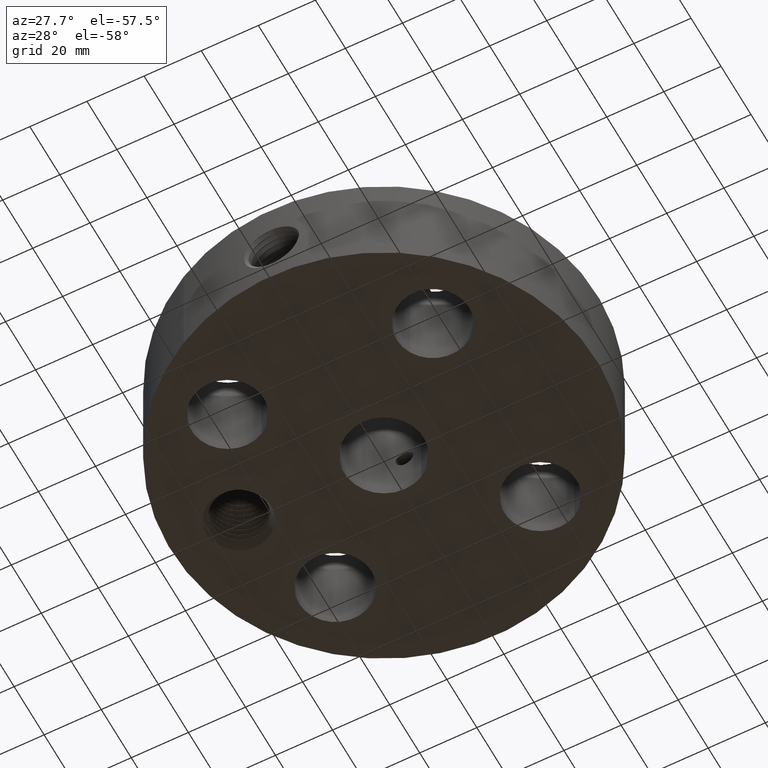
[diagram: clean part render]
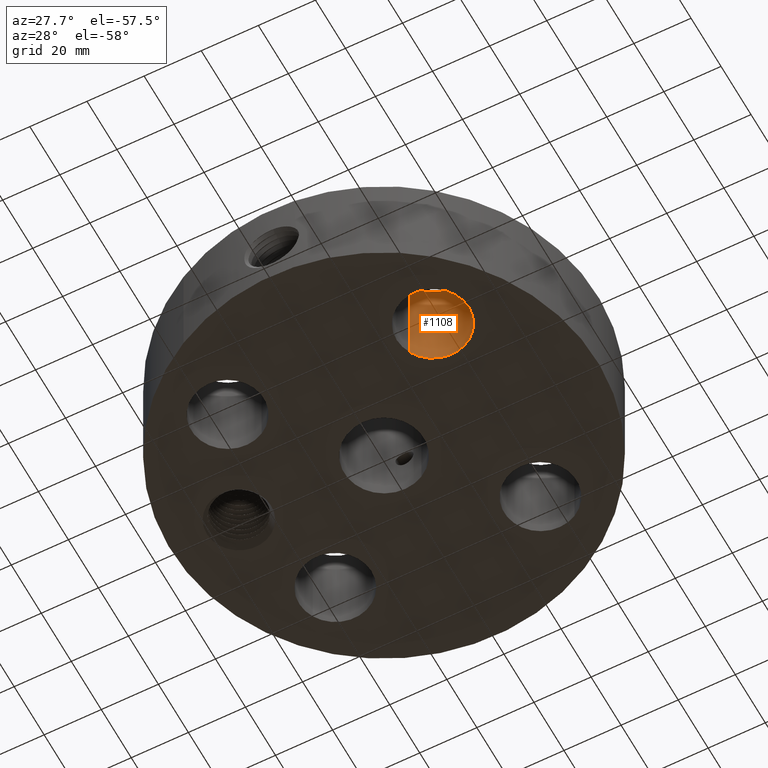
[diagram: same view with one face highlighted and labeled with its STEP entity id]
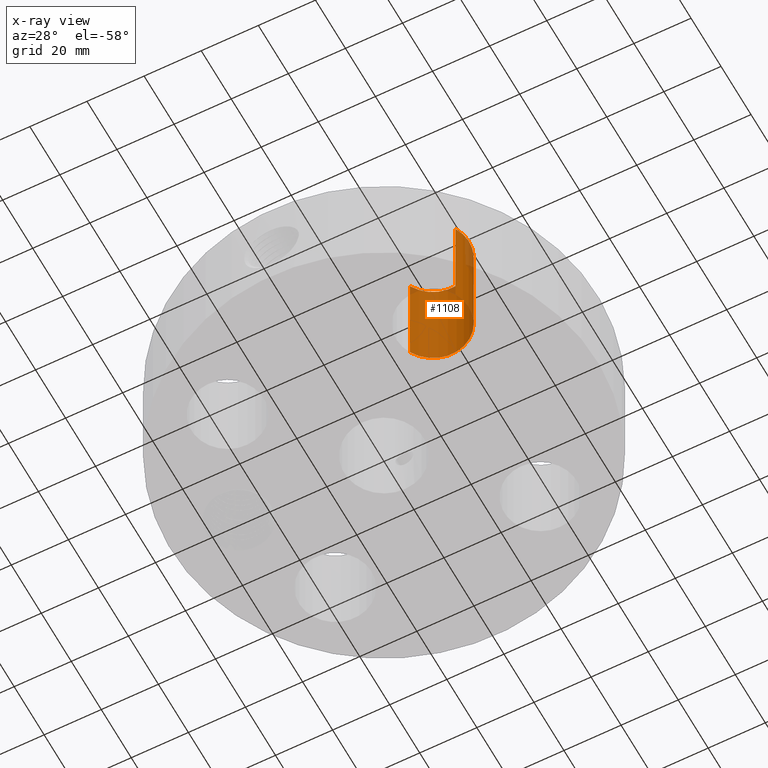
[diagram: x-ray of the same camera — body ghosted, the highlighted face saturated]
A machine part, auxiliary view. The second image highlights one B-rep face of the part: STEP entity #1108.
The next image is the same camera in x-ray: the body ghosted, the highlighted face saturated — about 7% of this face is hidden behind the body in this view.
In plain terms, the highlighted cylindrical surface (partial cylindrical patch) has radius 12.7 mm, axis along (0, -0, -1).
Its self-contained STEP definition (entity closure, byte-faithful):
#236=AXIS2_PLACEMENT_3D('Circle Axis2P3D',#234,#235,$) ;
#475=AXIS2_PLACEMENT_3D('Circle Axis2P3D',#473,#474,$) ;
#1083=AXIS2_PLACEMENT_3D('Cylinder Axis2P3D',#1080,#1081,#1082) ;
#229=CARTESIAN_POINT('Vertex',(1.85300484333,-1.65392633168,0.250000000001)) ;
#231=CARTESIAN_POINT('Vertex',(0.975422281432,-1.17450079308,0.250000000001)) ;
#234=CARTESIAN_POINT('Axis2P3D Location',(1.41421356238,-1.41421356238,0.250000000001)) ;
#473=CARTESIAN_POINT('Axis2P3D Location',(1.41421356238,-1.41421356238,1.75000000001)) ;
#477=CARTESIAN_POINT('Vertex',(0.975422281432,-1.17450079308,1.75000000001)) ;
#479=CARTESIAN_POINT('Vertex',(1.85300484333,-1.65392633168,1.75000000001)) ;
#1080=CARTESIAN_POINT('Axis2P3D Location',(1.41421356238,-1.41421356238,1.74606299213)) ;
#1085=CARTESIAN_POINT('Line Origine',(1.85300484333,-1.65392633168,1.)) ;
#1090=CARTESIAN_POINT('Line Origine',(0.975422281432,-1.17450079308,1.)) ;
#235=DIRECTION('Axis2P3D Direction',(0.,0.,-0.0393700787402)) ;
#474=DIRECTION('Axis2P3D Direction',(0.,0.,-0.0393700787402)) ;
#1081=DIRECTION('Axis2P3D Direction',(0.,-0.,-0.0393700787402)) ;
#1082=DIRECTION('Axis2P3D XDirection',(-0.0345504945626,0.0188750212049,0.)) ;
#1086=DIRECTION('Vector Direction',(0.,0.,-0.0393700787402)) ;
#1091=DIRECTION('Vector Direction',(0.,0.,-0.0393700787402)) ;
#1087=VECTOR('Line Direction',#1086,0.0393700787402) ;
#1092=VECTOR('Line Direction',#1091,0.0393700787402) ;
#1103=ORIENTED_EDGE('',*,*,#1094,.F.) ;
#1104=ORIENTED_EDGE('',*,*,#238,.T.) ;
#1105=ORIENTED_EDGE('',*,*,#1089,.T.) ;
#1106=ORIENTED_EDGE('',*,*,#481,.F.) ;
#1108=ADVANCED_FACE('PartBody',(#1107),#1084,.F.) ;
#237=CIRCLE('generated circle',#236,0.500000000002) ;
#476=CIRCLE('generated circle',#475,0.500000000002) ;
#1084=CYLINDRICAL_SURFACE('generated cylinder',#1083,0.500000000002) ;
#238=EDGE_CURVE('',#232,#230,#237,.T.) ;
#481=EDGE_CURVE('',#478,#480,#476,.T.) ;
#1089=EDGE_CURVE('',#230,#480,#1088,.F.) ;
#1094=EDGE_CURVE('',#232,#478,#1093,.F.) ;
#1102=EDGE_LOOP('',(#1103,#1104,#1105,#1106)) ;
#1107=FACE_OUTER_BOUND('',#1102,.T.) ;
#1088=LINE('Line',#1085,#1087) ;
#1093=LINE('Line',#1090,#1092) ;
#230=VERTEX_POINT('',#229) ;
#232=VERTEX_POINT('',#231) ;
#478=VERTEX_POINT('',#477) ;
#480=VERTEX_POINT('',#479) ;